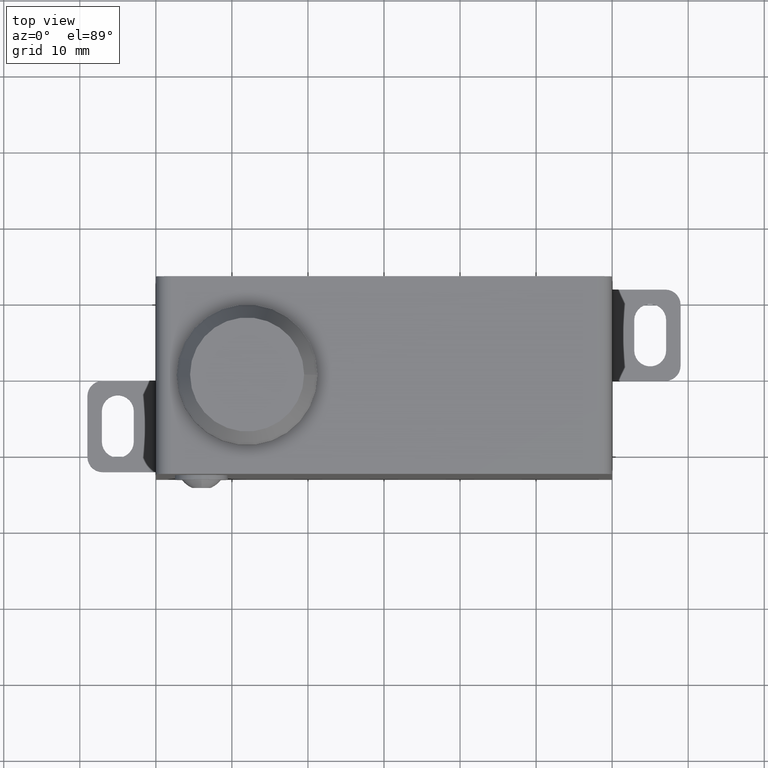
[diagram: clean part render]
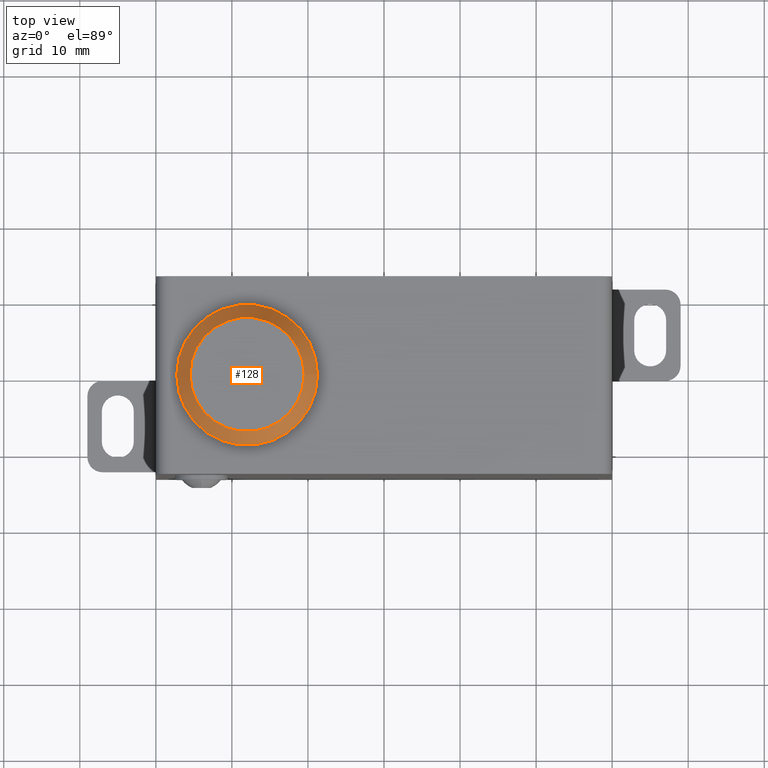
[diagram: same view with one face highlighted and labeled with its STEP entity id]
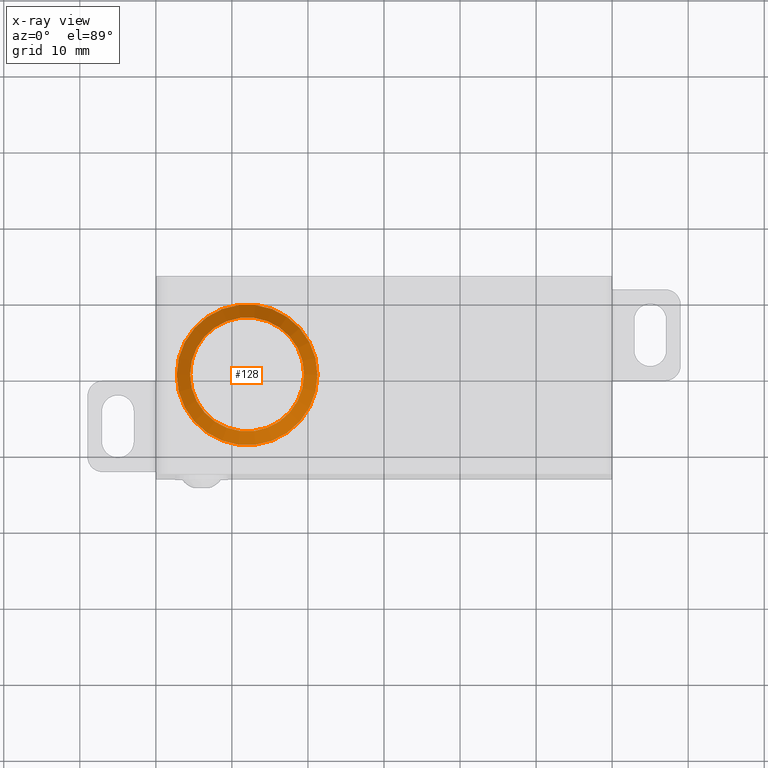
[diagram: x-ray of the same camera — body ghosted, the highlighted face saturated]
A machine part, top view. The second image highlights one B-rep face of the part: STEP entity #128.
The next image is the same camera in x-ray: the body ghosted, the highlighted face saturated — about 0% of this face is hidden behind the body in this view.
In plain terms, the highlighted conical surface has half-angle 30.256 deg.
Its self-contained STEP definition (entity closure, byte-faithful):
#128 = ADVANCED_FACE( '', ( #286, #287 ), #288, .T. );
#286 = FACE_BOUND( '', #479, .T. );
#287 = FACE_OUTER_BOUND( '', #480, .T. );
#288 = CONICAL_SURFACE( '', #481, 9.25000000000000, 0.528074448426359 );
#479 = EDGE_LOOP( '', ( #846 ) );
#480 = EDGE_LOOP( '', ( #847 ) );
#481 = AXIS2_PLACEMENT_3D( '', #848, #849, #850 );
#846 = ORIENTED_EDGE( '', *, *, #1274, .F. );
#847 = ORIENTED_EDGE( '', *, *, #1275, .T. );
#848 = CARTESIAN_POINT( '', ( -18.0000000000000, 3.46944695195361E-015, 46.0000000000000 ) );
#849 = DIRECTION( '', ( -0.000000000000000, -0.000000000000000, -1.00000000000000 ) );
#850 = DIRECTION( '', ( -1.00000000000000, 0.000000000000000, 0.000000000000000 ) );
#1274 = EDGE_CURVE( '', #1558, #1558, #1559, .T. );
#1275 = EDGE_CURVE( '', #1560, #1560, #1561, .T. );
#1558 = VERTEX_POINT( '', #1940 );
#1559 = CIRCLE( '', #1941, 7.50000000000000 );
#1560 = VERTEX_POINT( '', #1942 );
#1561 = CIRCLE( '', #1943, 9.25000000000000 );
#1940 = CARTESIAN_POINT( '', ( -10.5000000000000, 3.46944695195361E-015, 49.0000000000000 ) );
#1941 = AXIS2_PLACEMENT_3D( '', #2209, #2210, #2211 );
#1942 = CARTESIAN_POINT( '', ( -8.74999999999999, 3.46944695195361E-015, 46.0000000000000 ) );
#1943 = AXIS2_PLACEMENT_3D( '', #2212, #2213, #2214 );
#2209 = CARTESIAN_POINT( '', ( -18.0000000000000, 3.46944695195361E-015, 49.0000000000000 ) );
#2210 = DIRECTION( '', ( 0.000000000000000, 0.000000000000000, 1.00000000000000 ) );
#2211 = DIRECTION( '', ( 1.00000000000000, 0.000000000000000, -0.000000000000000 ) );
#2212 = CARTESIAN_POINT( '', ( -18.0000000000000, 3.46944695195361E-015, 46.0000000000000 ) );
#2213 = DIRECTION( '', ( 0.000000000000000, 0.000000000000000, 1.00000000000000 ) );
#2214 = DIRECTION( '', ( 1.00000000000000, 0.000000000000000, -0.000000000000000 ) );